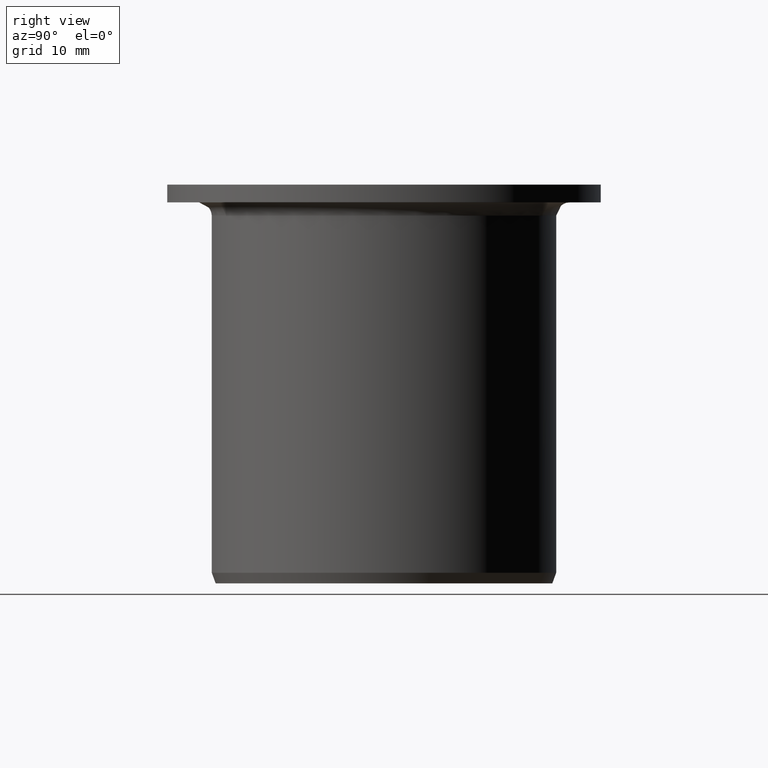
[diagram: clean part render]
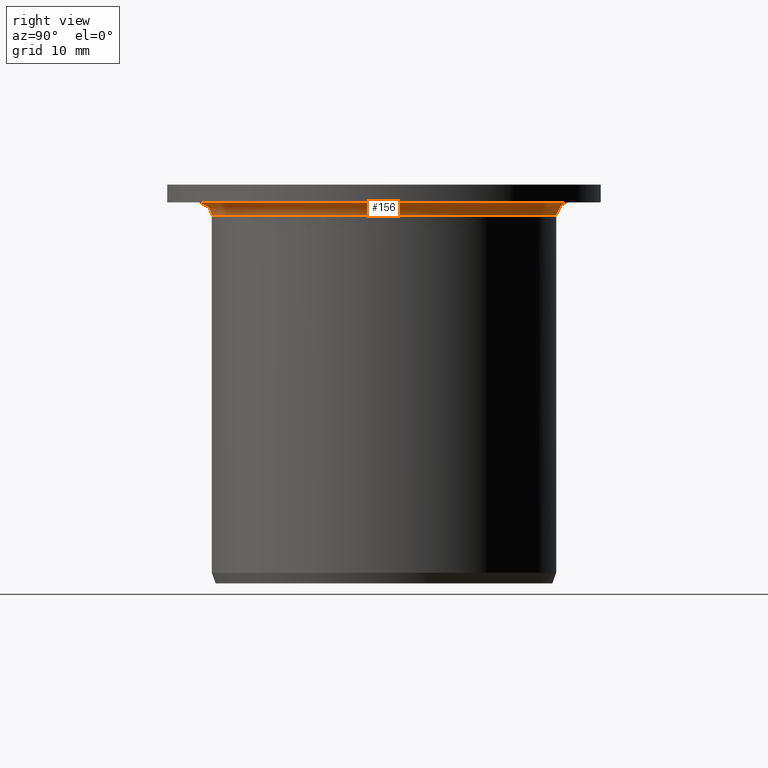
[diagram: same view with one face highlighted and labeled with its STEP entity id]
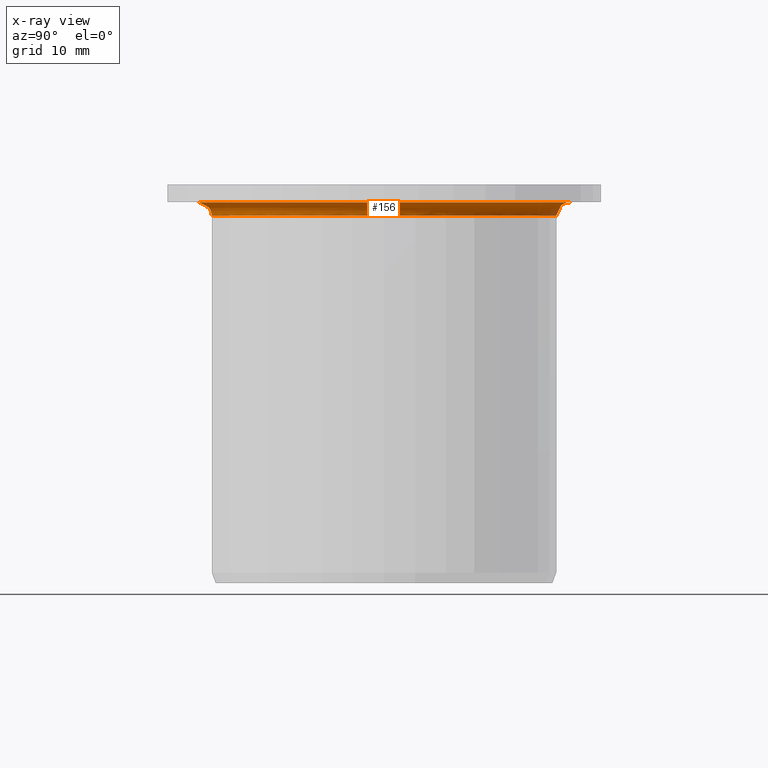
[diagram: x-ray of the same camera — body ghosted, the highlighted face saturated]
A machine part, right view. The second image highlights one B-rep face of the part: STEP entity #156.
The next image is the same camera in x-ray: the body ghosted, the highlighted face saturated — about 0% of this face is hidden behind the body in this view.
In plain terms, the highlighted toroidal blend (fillet) surface has major radius 21 mm and minor (blend) radius 1.5 mm.
Its self-contained STEP definition (entity closure, byte-faithful):
#156=ADVANCED_FACE('',(#173),#174,.F.);
#173=FACE_OUTER_BOUND('',#198,.T.);
#174=TOROIDAL_SURFACE('',#199,0.021,0.0015);
#198=EDGE_LOOP('',(#243,#244,#245,#246));
#199=AXIS2_PLACEMENT_3D('',#247,#248,#249);
#243=ORIENTED_EDGE('',*,*,#328,.T.);
#244=ORIENTED_EDGE('',*,*,#329,.T.);
#245=ORIENTED_EDGE('',*,*,#330,.F.);
#246=ORIENTED_EDGE('',*,*,#316,.F.);
#247=CARTESIAN_POINT('',(0.0,3.46944695195362E-018,0.0415));
#248=DIRECTION('',(0.0,-6.12323399573677E-017,-1.0));
#249=DIRECTION('',(0.0,1.0,-6.12323399573677E-017));
#316=EDGE_CURVE('',#349,#351,#352,.T.);
#328=EDGE_CURVE('',#349,#372,#373,.T.);
#329=EDGE_CURVE('',#372,#374,#375,.T.);
#330=EDGE_CURVE('',#351,#374,#376,.T.);
#349=VERTEX_POINT('',#418);
#351=VERTEX_POINT('',#421);
#352=B_SPLINE_CURVE_WITH_KNOTS('',3,(#422,#423,#424,#425,#426,#427,#428,#429,#430,#431,#432,#433,#434,#435),.UNSPECIFIED.,.F.,.F.,(4,2,2,2,2,2,4),(1.51253615729084E-005,0.000309526954499271,0.000603928547425633,0.000898330140351995,0.00119273173327836,0.00178153491913109,0.00237033810498382),.UNSPECIFIED.);
#372=VERTEX_POINT('',#484);
#373=CIRCLE('',#485,0.021);
#374=VERTEX_POINT('',#486);
#375=B_SPLINE_CURVE_WITH_KNOTS('',3,(#487,#488,#489,#490,#491,#492,#493,#494,#495,#496,#497,#498,#499,#500),.UNSPECIFIED.,.F.,.F.,(4,2,2,2,2,2,4),(1.5125361572905E-005,0.000309526954499271,0.000603928547425637,0.000898330140352003,0.00119273173327837,0.00178153491913109,0.00237033810498382),.UNSPECIFIED.);
#376=CIRCLE('',#501,0.0195);
#418=CARTESIAN_POINT('',(0.0209851033973357,-0.000790844740217477,0.043));
#421=CARTESIAN_POINT('',(0.0194928579205826,-0.00052772160082575,0.0415));
#422=CARTESIAN_POINT('',(0.0209851033973357,-0.00079084474021748,0.043));
#423=CARTESIAN_POINT('',(0.020887234603486,-0.000773587831292375,0.043));
#424=CARTESIAN_POINT('',(0.0207908761436344,-0.000756597235001041,0.0429904013861209));
#425=CARTESIAN_POINT('',(0.0206010739036773,-0.000723129979097698,0.0429526805169067));
#426=CARTESIAN_POINT('',(0.0205066387155741,-0.000706478507506823,0.0429240876814515));
#427=CARTESIAN_POINT('',(0.0203266420344327,-0.000674740236183612,0.0428494867840182));
#428=CARTESIAN_POINT('',(0.0202411221118634,-0.000659660766446539,0.0428037852975727));
#429=CARTESIAN_POINT('',(0.0200790171185027,-0.000631077282409482,0.0426956214893007));
#430=CARTESIAN_POINT('',(0.0200021474508167,-0.000617523085998349,0.0426325952962743));
#431=CARTESIAN_POINT('',(0.0197951778992534,-0.00058102876987261,0.0424257879324392));
#432=CARTESIAN_POINT('',(0.0196832067906457,-0.00056128524236524,0.0422585812978061));
#433=CARTESIAN_POINT('',(0.0195329495153544,-0.00053479083068364,0.0418969470921935));
#434=CARTESIAN_POINT('',(0.0194928579205806,-0.000527721600825395,0.0416991392971471));
#435=CARTESIAN_POINT('',(0.0194928579205806,-0.00052772160082539,0.0415000000000002));
#484=CARTESIAN_POINT('',(0.0209851033973357,0.000790844740217485,0.043));
#485=AXIS2_PLACEMENT_3D('',#544,#545,#546);
#486=CARTESIAN_POINT('',(0.0194928579205826,0.000527721600825756,0.0415));
#487=CARTESIAN_POINT('',(0.0209851033973357,0.000790844740217488,0.043));
#488=CARTESIAN_POINT('',(0.020887234603486,0.000773587831292382,0.043));
#489=CARTESIAN_POINT('',(0.0207908761436344,0.000756597235001048,0.0429904013861209));
#490=CARTESIAN_POINT('',(0.0206010739036773,0.000723129979097705,0.0429526805169067));
#491=CARTESIAN_POINT('',(0.0205066387155741,0.000706478507506831,0.0429240876814515));
#492=CARTESIAN_POINT('',(0.0203266420344327,0.000674740236183619,0.0428494867840181));
#493=CARTESIAN_POINT('',(0.0202411221118634,0.000659660766446547,0.0428037852975727));
#494=CARTESIAN_POINT('',(0.0200790171185027,0.000631077282409489,0.0426956214893007));
#495=CARTESIAN_POINT('',(0.0200021474508167,0.000617523085998355,0.0426325952962743));
#496=CARTESIAN_POINT('',(0.0197951778992534,0.000581028769872617,0.0424257879324392));
#497=CARTESIAN_POINT('',(0.0196832067906457,0.000561285242365247,0.0422585812978061));
#498=CARTESIAN_POINT('',(0.0195329495153544,0.000534790830683647,0.0418969470921935));
#499=CARTESIAN_POINT('',(0.0194928579205806,0.000527721600825401,0.0416991392971471));
#500=CARTESIAN_POINT('',(0.0194928579205806,0.000527721600825396,0.0415000000000002));
#501=AXIS2_PLACEMENT_3D('',#547,#548,#549);
#544=CARTESIAN_POINT('',(0.0,3.46944695195362E-018,0.043));
#545=DIRECTION('',(0.0,-6.12323399573677E-017,-1.0));
#546=DIRECTION('',(0.0,1.0,-6.12323399573677E-017));
#547=CARTESIAN_POINT('',(0.0,3.46944695195362E-018,0.0415));
#548=DIRECTION('',(0.0,-6.12323399573677E-017,-1.0));
#549=DIRECTION('',(0.0,1.0,-6.12323399573677E-017));